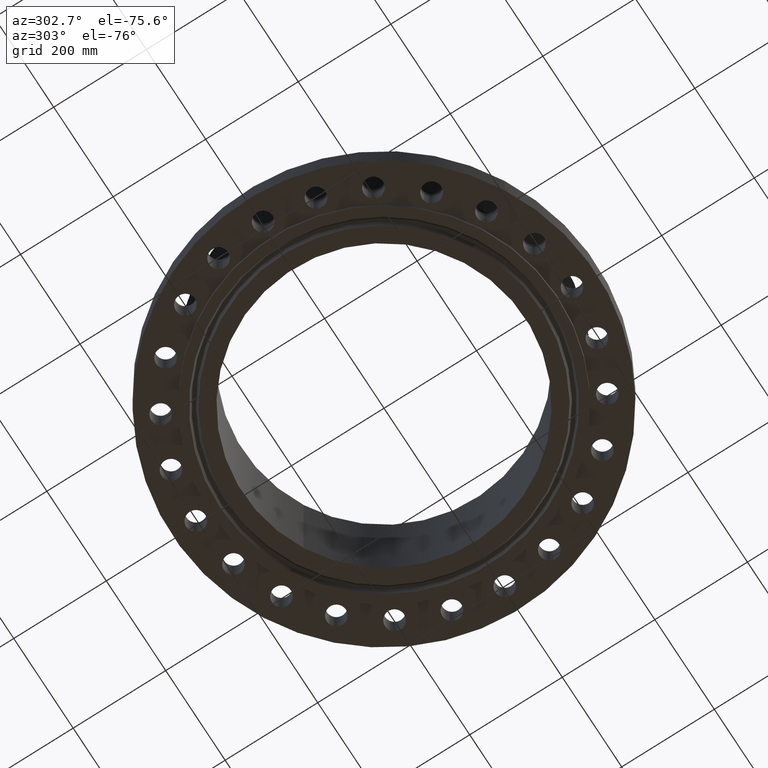
[diagram: clean part render]
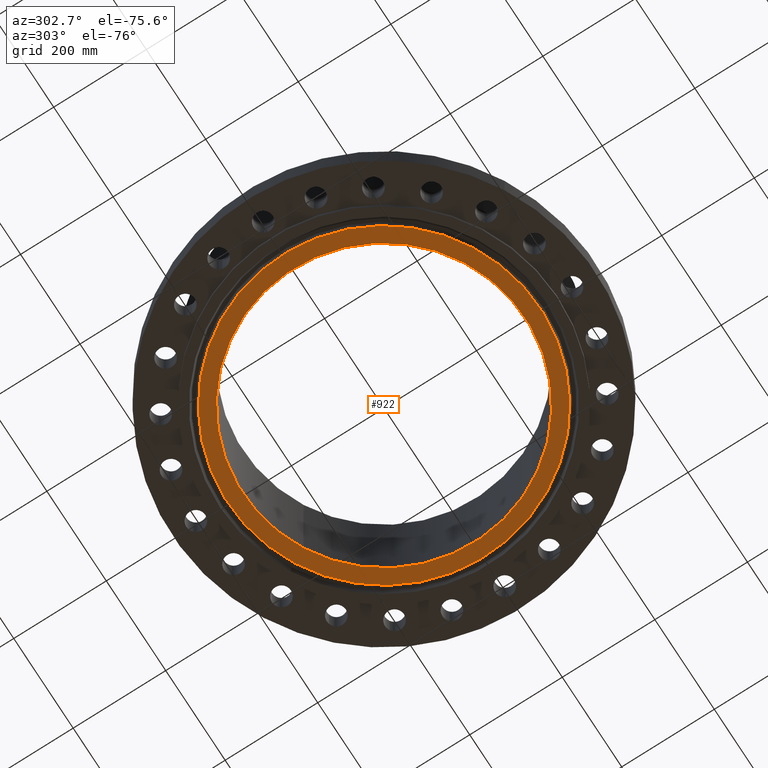
[diagram: same view with one face highlighted and labeled with its STEP entity id]
A machine part, auxiliary view. The second image highlights one B-rep face of the part: STEP entity #922.
In plain terms, the highlighted planar face has unit normal (0, 0, -1).
Its self-contained STEP definition (entity closure, byte-faithful):
#866=AXIS2_PLACEMENT_3D('Circle Axis2P3D',#864,#865,$) ;
#885=AXIS2_PLACEMENT_3D('Circle Axis2P3D',#883,#884,$) ;
#898=AXIS2_PLACEMENT_3D('Plane Axis2P3D',#895,#896,#897) ;
#902=AXIS2_PLACEMENT_3D('Circle Axis2P3D',#900,#901,$) ;
#911=AXIS2_PLACEMENT_3D('Circle Axis2P3D',#909,#910,$) ;
#861=CARTESIAN_POINT('Vertex',(5.75310646327,10.5309907427,-0.438000000002)) ;
#864=CARTESIAN_POINT('Axis2P3D Location',(0.,0.,-0.438000000002)) ;
#868=CARTESIAN_POINT('Vertex',(-5.75310646327,-10.5309907427,-0.438000000002)) ;
#883=CARTESIAN_POINT('Axis2P3D Location',(0.,0.,-0.438000000002)) ;
#895=CARTESIAN_POINT('Axis2P3D Location',(0.,13.2970000001,-0.438000000002)) ;
#900=CARTESIAN_POINT('Axis2P3D Location',(0.,0.,-0.438000000002)) ;
#904=CARTESIAN_POINT('Vertex',(-6.37492138685,-11.6692153255,-0.438000000002)) ;
#906=CARTESIAN_POINT('Vertex',(6.37492138685,11.6692153255,-0.438000000002)) ;
#909=CARTESIAN_POINT('Axis2P3D Location',(0.,0.,-0.438000000002)) ;
#865=DIRECTION('Axis2P3D Direction',(0.,0.,-0.0393700787402)) ;
#884=DIRECTION('Axis2P3D Direction',(0.,0.,-0.0393700787402)) ;
#896=DIRECTION('Axis2P3D Direction',(0.,0.,-0.0393700787402)) ;
#897=DIRECTION('Axis2P3D XDirection',(0.0393700787402,0.,0.)) ;
#901=DIRECTION('Axis2P3D Direction',(0.,0.,-0.0393700787402)) ;
#910=DIRECTION('Axis2P3D Direction',(0.,0.,-0.0393700787402)) ;
#915=ORIENTED_EDGE('',*,*,#908,.T.) ;
#916=ORIENTED_EDGE('',*,*,#913,.T.) ;
#919=ORIENTED_EDGE('',*,*,#870,.F.) ;
#920=ORIENTED_EDGE('',*,*,#887,.F.) ;
#921=FACE_BOUND('',#918,.T.) ;
#922=ADVANCED_FACE('PartBody',(#917,#921),#899,.T.) ;
#867=CIRCLE('generated circle',#866,12.) ;
#886=CIRCLE('generated circle',#885,12.) ;
#903=CIRCLE('generated circle',#902,13.2970000001) ;
#912=CIRCLE('generated circle',#911,13.2970000001) ;
#870=EDGE_CURVE('',#862,#869,#867,.T.) ;
#887=EDGE_CURVE('',#869,#862,#886,.T.) ;
#908=EDGE_CURVE('',#905,#907,#903,.T.) ;
#913=EDGE_CURVE('',#907,#905,#912,.T.) ;
#914=EDGE_LOOP('',(#915,#916)) ;
#918=EDGE_LOOP('',(#919,#920)) ;
#917=FACE_OUTER_BOUND('',#914,.T.) ;
#899=PLANE('',#898) ;
#862=VERTEX_POINT('',#861) ;
#869=VERTEX_POINT('',#868) ;
#905=VERTEX_POINT('',#904) ;
#907=VERTEX_POINT('',#906) ;